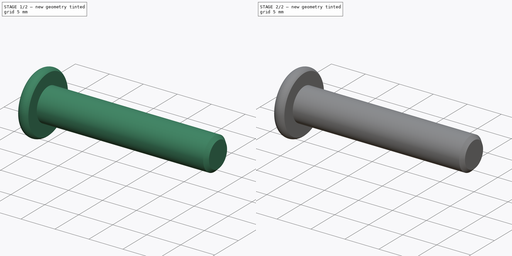
[diagram: build sequence overview — one tinted view per stage of 2, left to right]
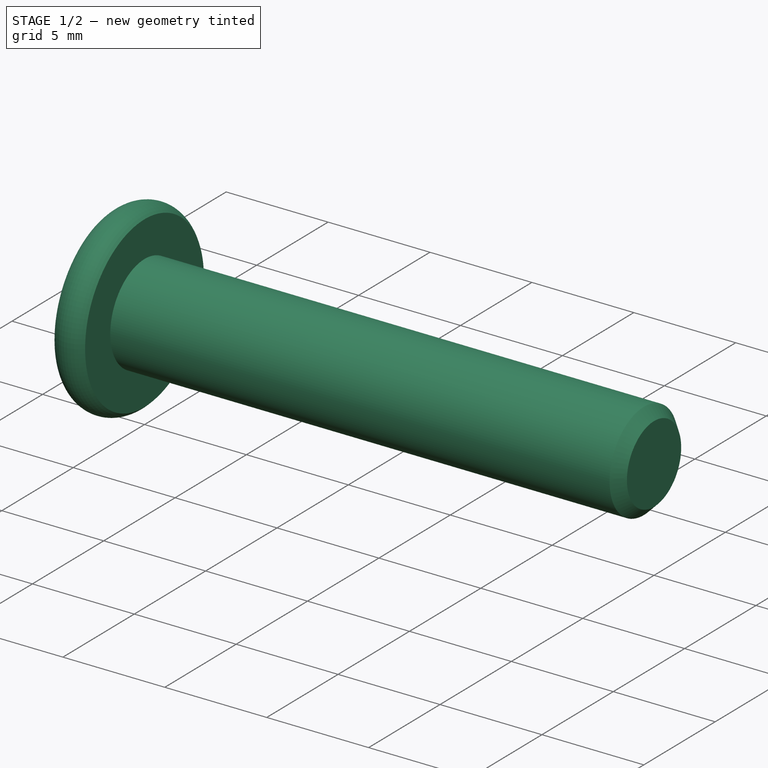
[diagram: stage 1 of 2 — iso view after this stage's code; geometry added in this stage tinted green]
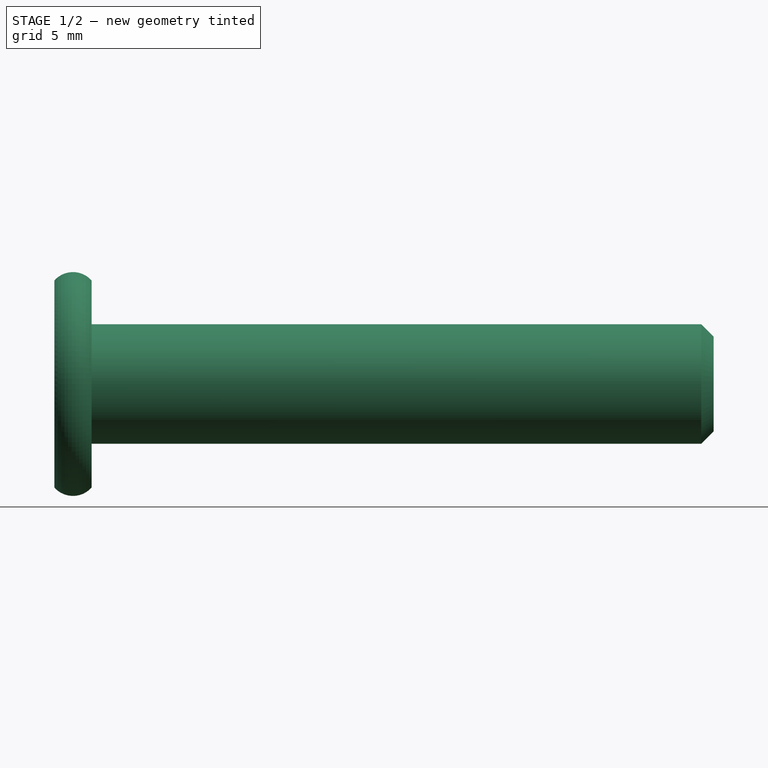
[diagram: stage 1 of 2 — front view after this stage's code; geometry added in this stage tinted green]
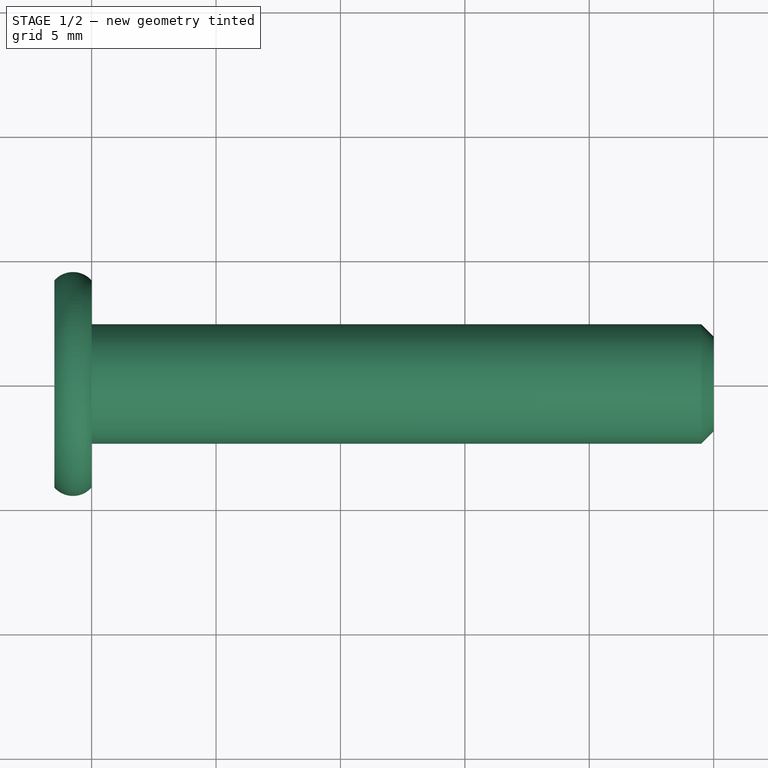
[diagram: stage 1 of 2 — top view after this stage's code; geometry added in this stage tinted green]
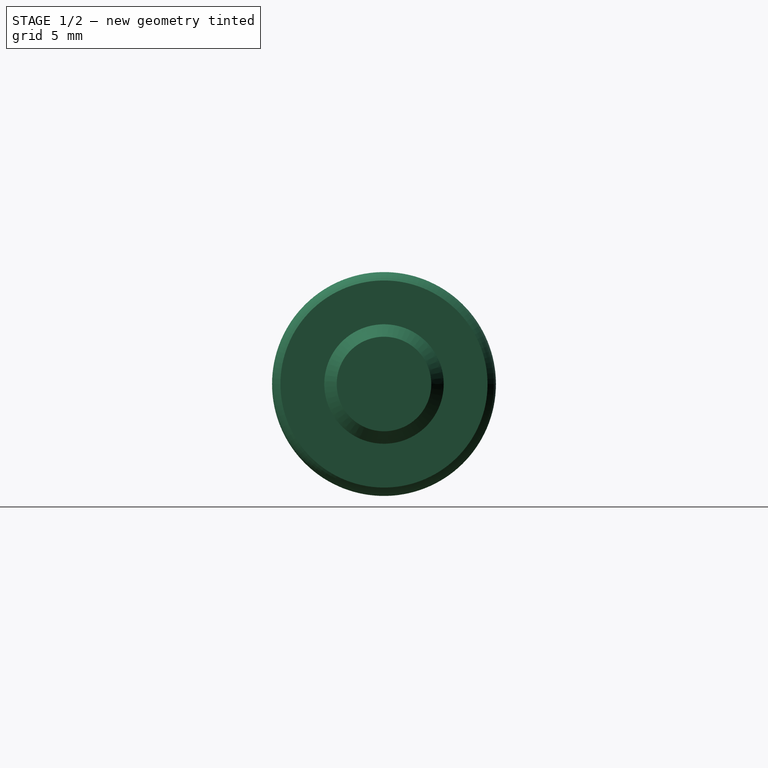
[diagram: stage 1 of 2 — right view after this stage's code; geometry added in this stage tinted green]
FCSTD DOCUMENT  (FreeCAD 0.19R24267 (Git))
Label: openbuilds_low_profile_screws
License: All rights reserved
LicenseURL: http://en.wikipedia.org/wiki/All_rights_reserved
objects: Sketcher::SketchObject×1, PartDesign::Revolution×1, PartDesign::SubtractivePrism×1, PartDesign::CoordinateSystem×1, PartDesign::Body×1, App::Part×1
note: 7 computed .brp shape members not serialized (recipe doc carries the construction recipe); baked Part::Feature solids carry a one-line shape summary decoded from their .brp

FEATURE [Sketcher::SketchObject] Sketch_002
  FullyConstrained = false
  sketch-geometry (9):
    g0: LineSegment StartX=-1.5 StartY=4.16144 StartZ=0 EndX=-1.5 EndY=1.75 EndZ=0
    g1: LineSegment StartX=0.25 StartY=0 StartZ=0 EndX=25 EndY=0 EndZ=0
    g2: LineSegment StartX=25 StartY=0 StartZ=0 EndX=25 EndY=1.9 EndZ=0
    g3: LineSegment StartX=25 StartY=1.9 StartZ=0 EndX=24.5 EndY=2.4 EndZ=0
    g4: LineSegment StartX=24.5 StartY=2.4 StartZ=0 EndX=0 EndY=2.4 EndZ=0
    g5: LineSegment StartX=0 StartY=2.4 StartZ=0 EndX=0 EndY=4.16144 EndZ=0
    g6: ArcOfCircle CenterX=-0.75 CenterY=3.5 CenterZ=0 NormalX=0 NormalY=0 NormalZ=1 AngleXU=0 Radius=1 StartAngle=0.722734 EndAngle=2.41886
    g7: GeomPoint X=-0.75 Y=4.5 Z=0
    g8: LineSegment StartX=-1.5 StartY=1.75 StartZ=0 EndX=0.25 EndY=0 EndZ=0
  constraints (27):
    c: PointOnObject(g1,g-1)
    c: Coincident(g1,g2)
    c: Coincident(g2,g3)
    c: Coincident(g3,g4)
    c: PointOnObject(g4,g-2)
    c: Horizontal(g4)
    c: Coincident(g4,g5)
    c: PointOnObject(g5,g-2)
    c: Vertical(g0)
    c: Coincident(g6,g0)
    c: Coincident(g6,g5)
    c: Horizontal(g0,g5)
    c: DistanceX(g0,g5) = 1.5
    c: PointOnObject(g7,g6)
    c: Vertical(g7,g6)
    c: Angle(g3,g2) = 2.35619
    c: Vertical(g2)
    c: DistanceY(g-1,g4) = 2.4
    c: DistanceY(g2,g3) = 0.5
    c: DistanceX(g-1,g1) = 25
    c: DistanceY(g-1,g6) = 3.5
    c: Coincident(g0,g8)
    c: Coincident(g1,g8)
    c: DistanceY(g-1,g7) = 4.5
    c: Angle(g8,g-1) = 0.785398
    c: DistanceY(g1,g0) = 1.75
    c: Horizontal(g1)
FEATURE [PartDesign::Revolution] Revolution
  Angle = 360
  Axis = (1,0,0)
  Base = (0,0,0)
  Profile = -> Sketch_002
  ReferenceAxis = -> Sketch_002 [H_Axis]
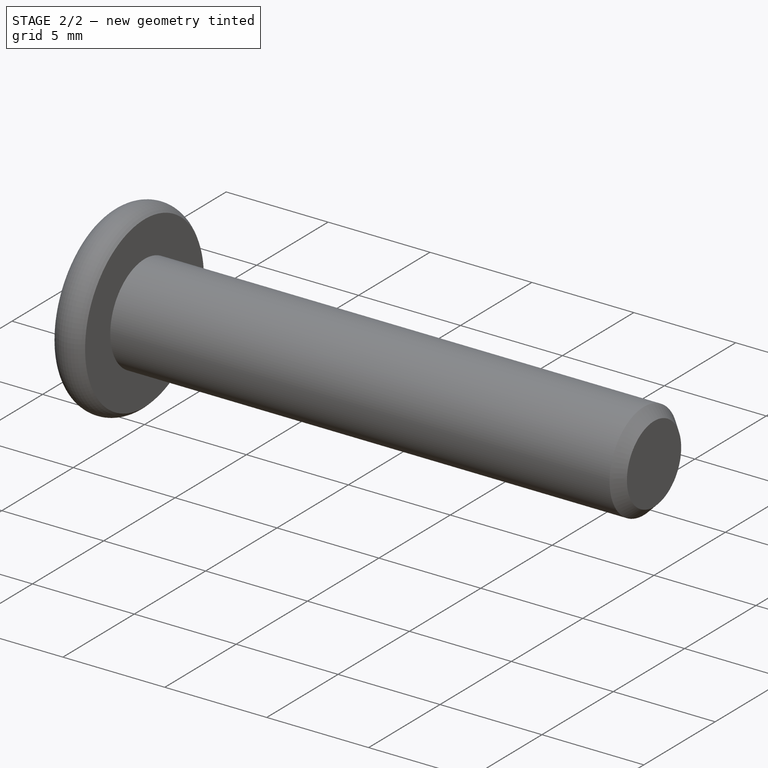
[diagram: stage 2 of 2 — iso view after this stage's code; geometry added in this stage tinted green]
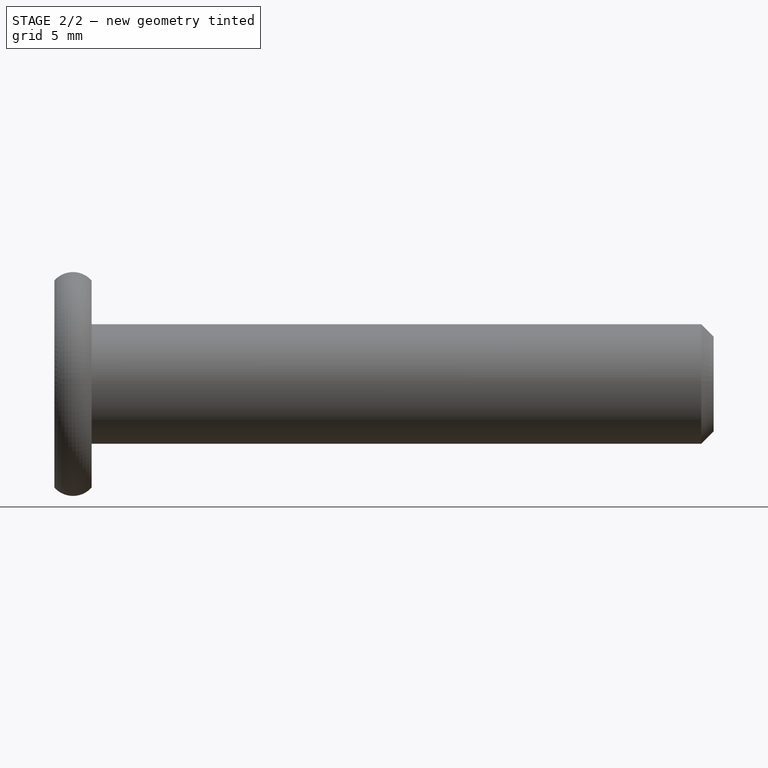
[diagram: stage 2 of 2 — front view after this stage's code; geometry added in this stage tinted green]
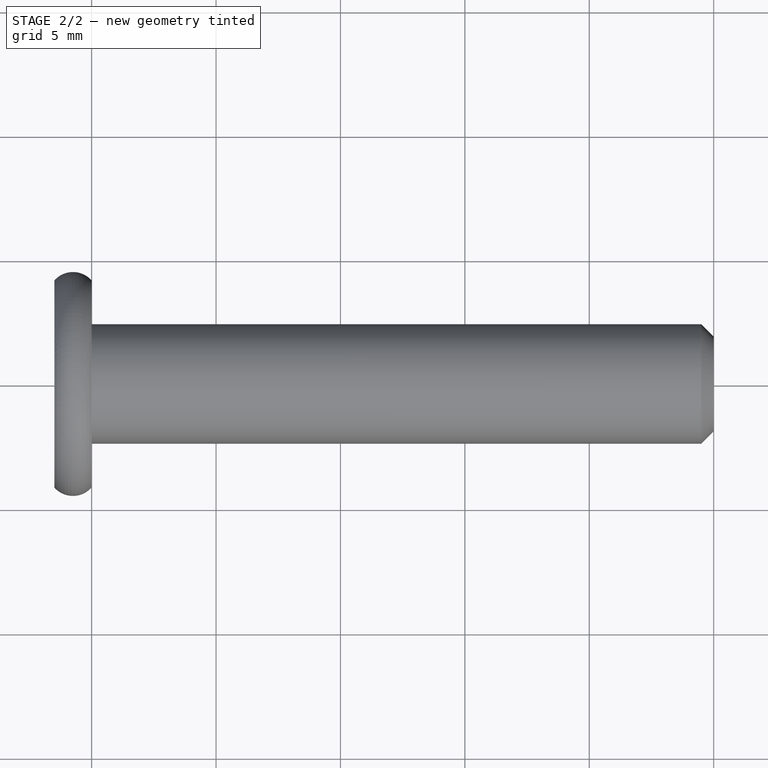
[diagram: stage 2 of 2 — top view after this stage's code; geometry added in this stage tinted green]
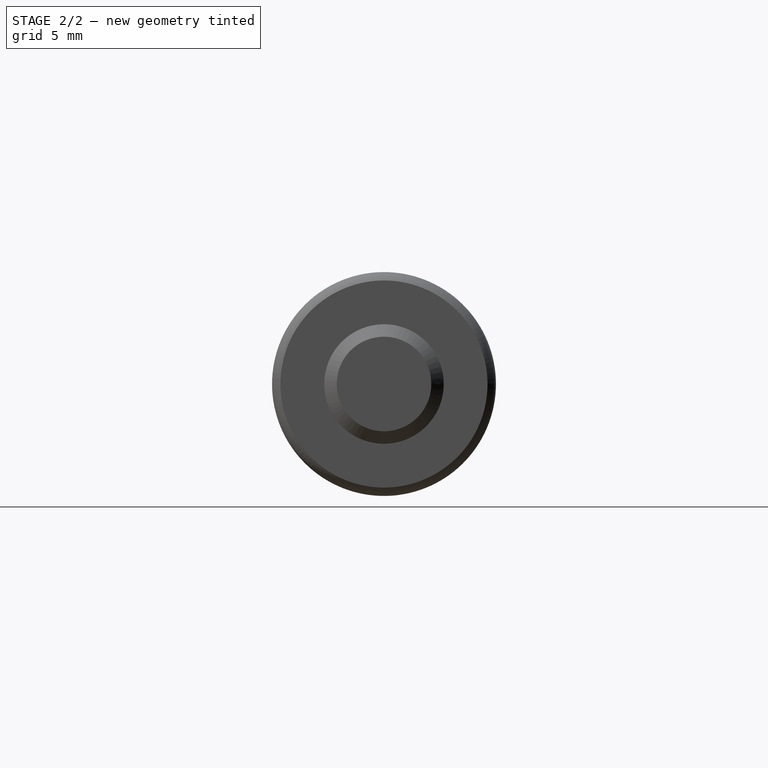
[diagram: stage 2 of 2 — right view after this stage's code; geometry added in this stage tinted green]
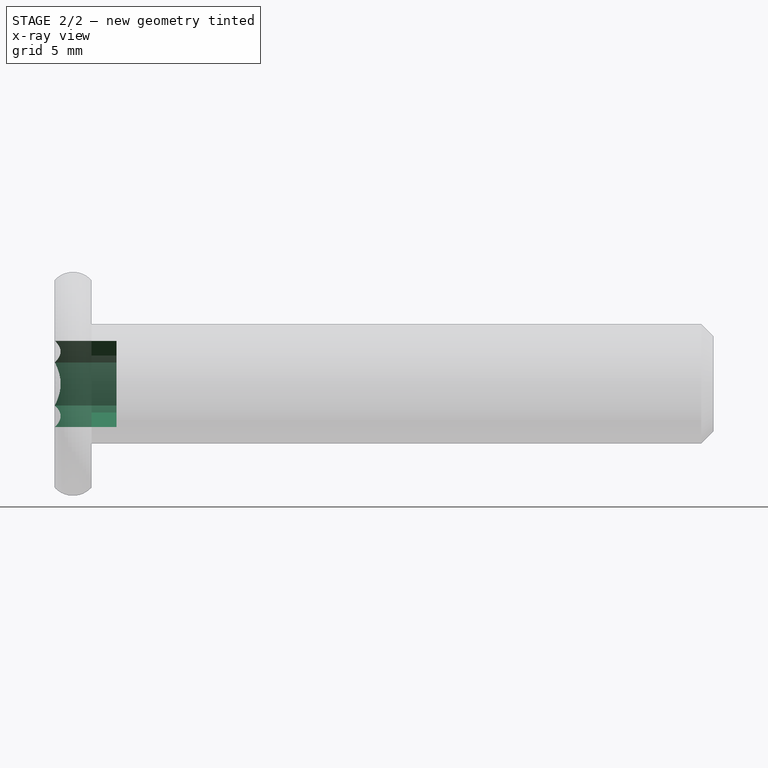
[diagram: stage 2 of 2 — x-ray composite at the front view; earlier geometry ghosted, this stage's added geometry solid]
FEATURE [PartDesign::SubtractivePrism] Prism
  AttacherType = Attacher::AttachEngine3D
  BaseFeature = -> Revolution
  Circumradius = 1.73205
  FirstAngle = 0
  Height = 2.5
  MapMode = 11
  Placement = pos=(-1.5,0,0) rot=(0.707107,0,0.707107;3.14159rad)
  Polygon = 6
  SecondAngle = 0
  Support = -> [Revolution]
  expr: Circumradius = 3 / sqrt(3) * 1mm
FEATURE [PartDesign::CoordinateSystem] LCS_0
  AttacherType = Attacher::AttachEngine3D
  MapMode = 11
  Placement = pos=(0,0,0) rot=(0.707107,0,0.707107;3.14159rad)
  Support = -> [Prism]
FEATURE [PartDesign::Body] Body
  Group = -> [Sketch_002,Revolution,Prism]
  Origin = -> Origin001
  Tip = -> Prism
FEATURE [App::Part] low_profile_screw_l25mm
  Group = -> [LCS_0,Body]
  Origin = -> Origin
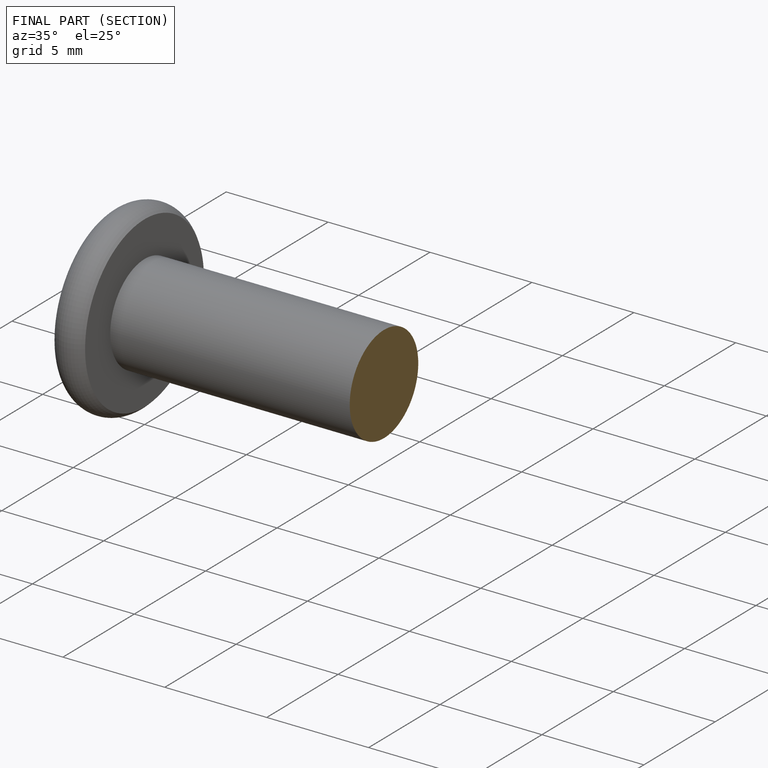
[diagram: finished part — half-section view (interior)]
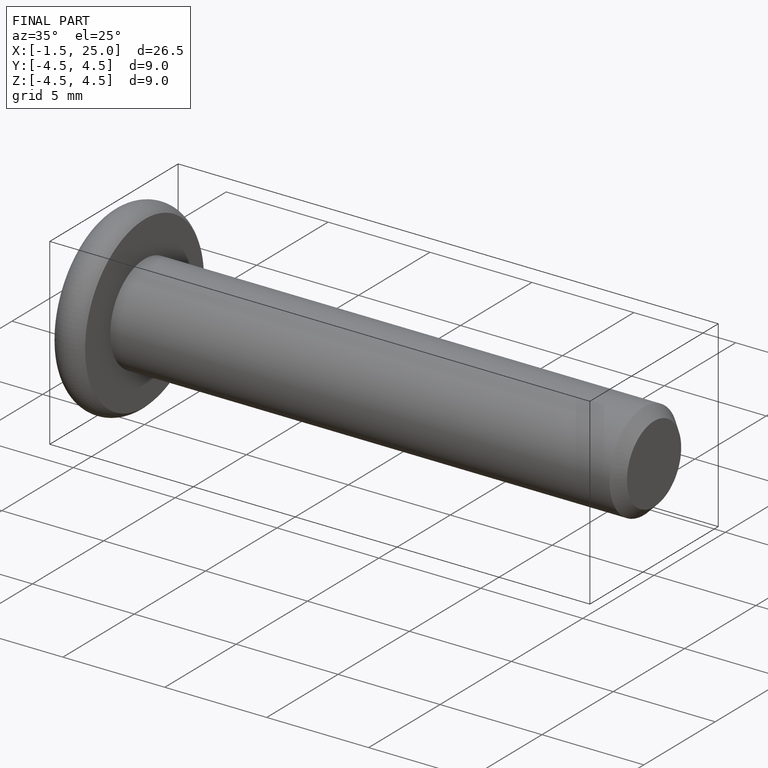
[diagram: finished part — iso view with bounding-box wireframe]
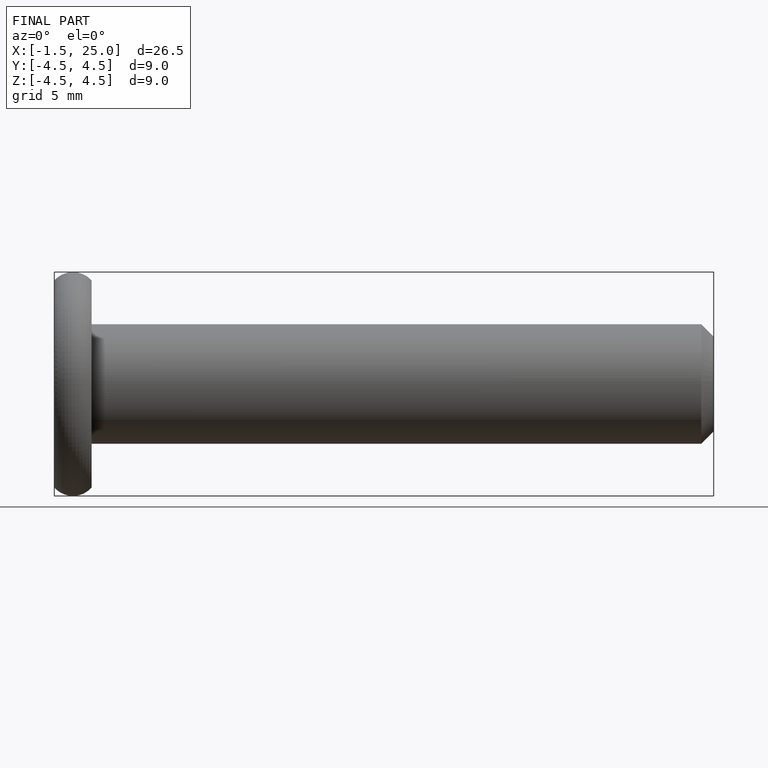
[diagram: finished part — front view with bounding-box wireframe]
